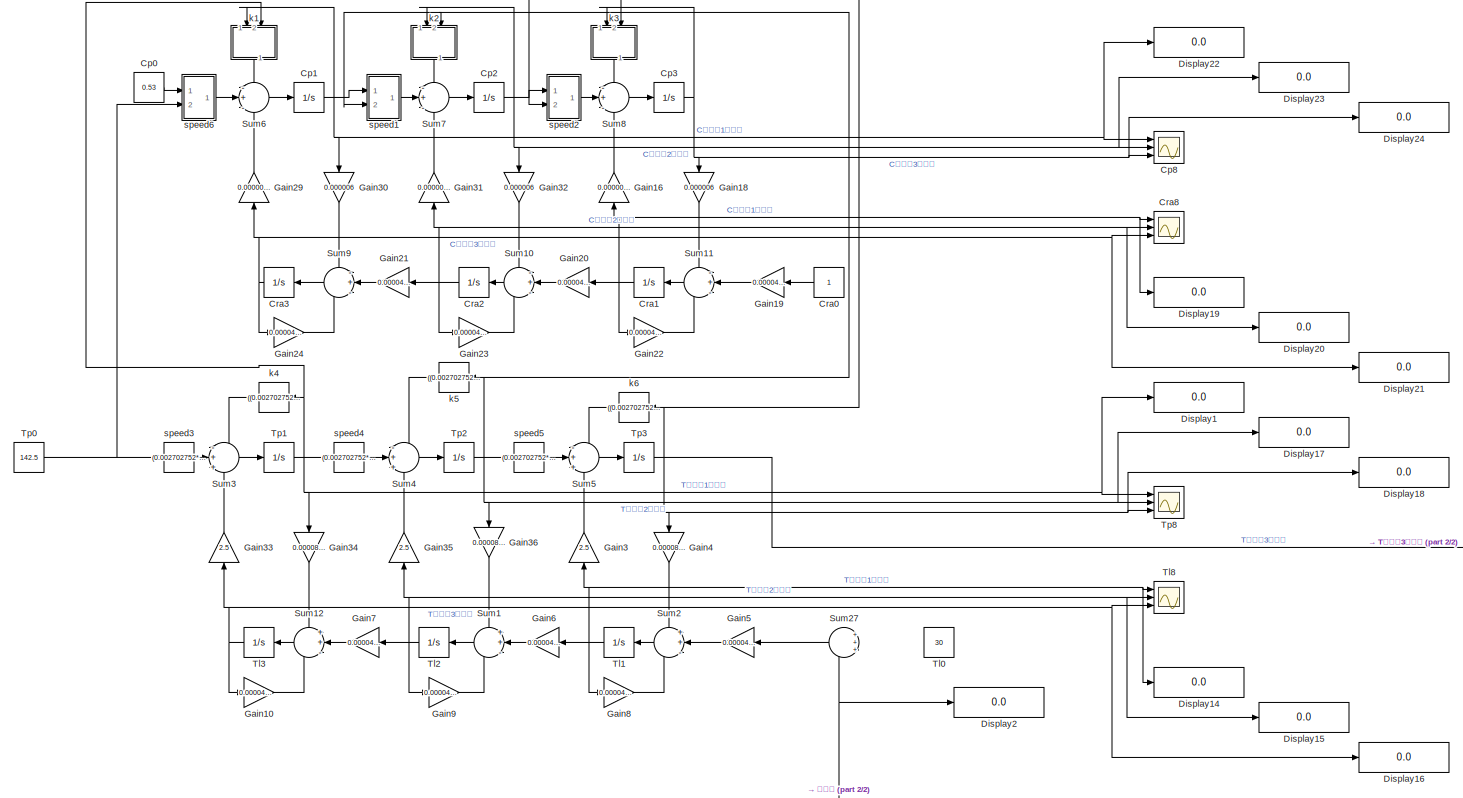
[diagram: root canvas - part 1/2, most of the canvas]
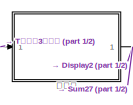
[diagram: root canvas - part 2/2, bottom right region]
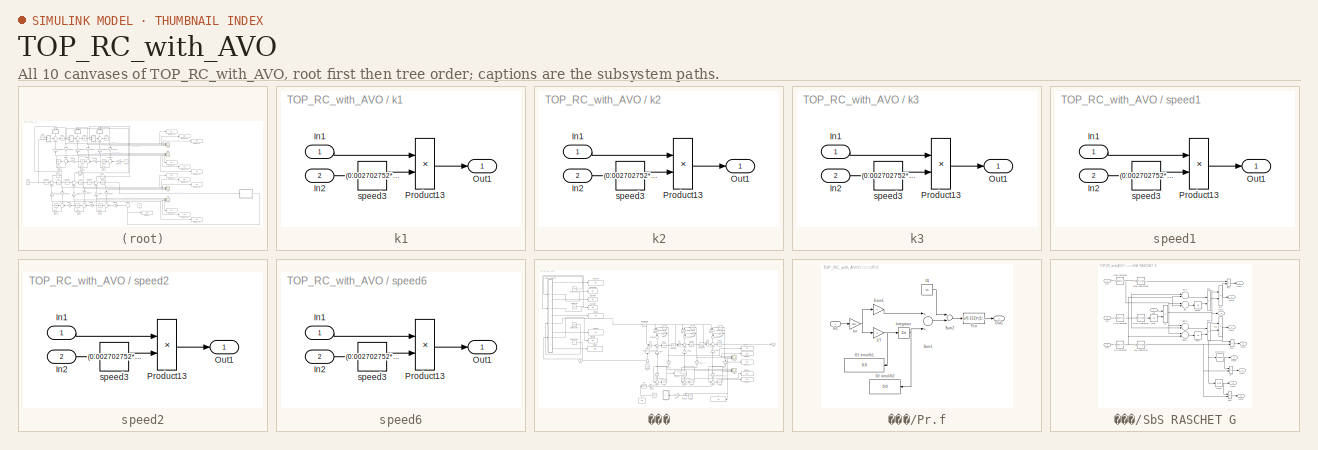
[diagram: thumbnail index - all 10 canvases of the model, root first then tree order]
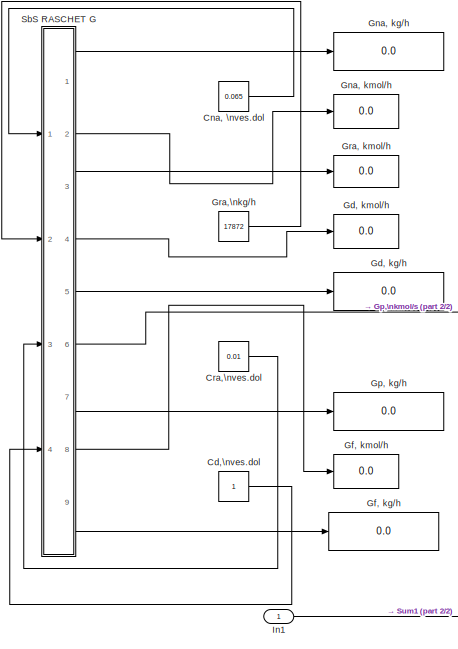
[diagram: ��� - part 1/2, middle left region]
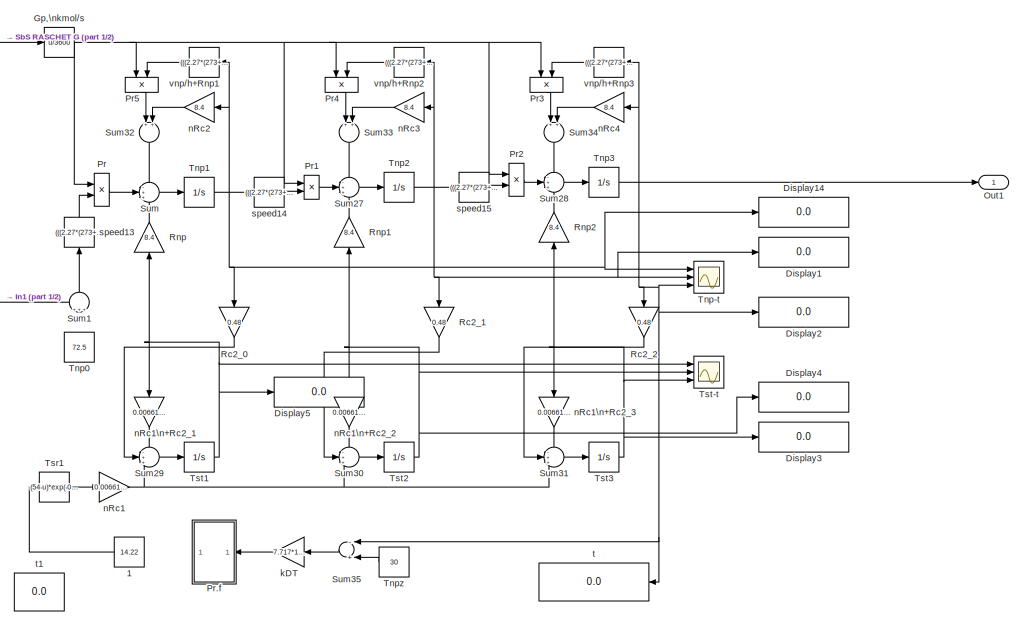
[diagram: ��� - part 2/2, middle right region]
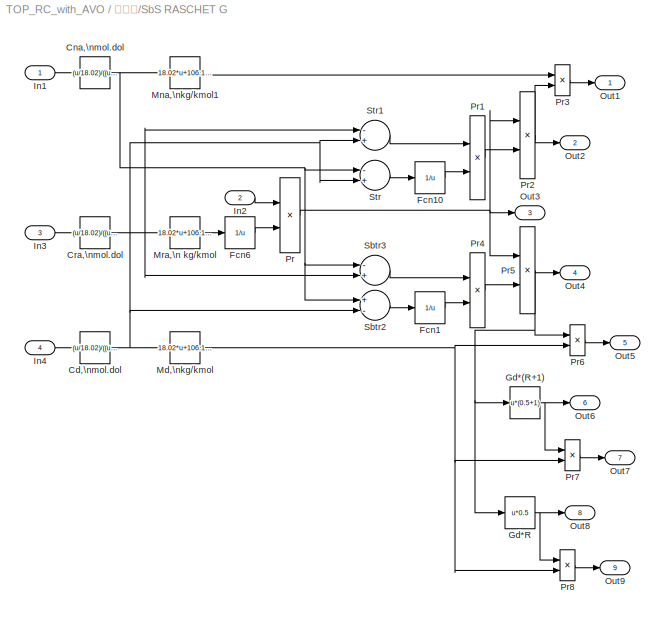
MODEL TOP_RC_with_AVO
KIND model
BLOCK [Constant] Cp0
  SID = 2
  Value = 0.53
BLOCK [Integrator] Cp1
  InitialCondition = 0.682
  Ports = [1, 1]
  SID = 3
BLOCK [Integrator] Cp2
  InitialCondition = 0.834
  Ports = [1, 1]
  SID = 4
BLOCK [Integrator] Cp3
  InitialCondition = 0.986
  Ports = [1, 1]
  SID = 5
BLOCK [Scope] Cp8
  Floating = off
  NumInputPorts = 3
  Ports = [3]
  SID = 10
  ScopeSpecificationString = C++SS(StrPVP('Location','[5, 49, 1371, 737]'),StrPVP('Open','off'),StrPVP('TickLabels','on'),StrPVP('ZoomMode','xonly'),MxPVP('AxesTitles',53,'struct(''axes1'',''%<SignalLabel>'',''axes2'',''%<SignalLabel>'',''axes3'',''%<SignalLabel>'')'),MxPVP('ScopeGraphics',56,'struct(''FigureColor'',''[1 1 1]'',''AxesColor'',''[1 1 1]'',''AxesTickColor'',''[0 0 0]'',''LineColors'',''[0 0 0;1 0 1;0 1 1;1 0 0;0...<+446ch>
BLOCK [Constant] Cra0
  SID = 15
BLOCK [Integrator] Cra1
  InitialCondition = 0.88825
  Ports = [1, 1]
  SID = 16
BLOCK [Integrator] Cra2
  InitialCondition = 0.7765
  Ports = [1, 1]
  SID = 17
BLOCK [Integrator] Cra3
  InitialCondition = 0.66475
  Ports = [1, 1]
  SID = 18
BLOCK [Scope] Cra8
  Floating = off
  NumInputPorts = 3
  Ports = [3]
  SID = 23
  ScopeSpecificationString = C++SS(StrPVP('Location','[5, 49, 1371, 737]'),StrPVP('Open','off'),StrPVP('TickLabels','on'),StrPVP('ZoomMode','xonly'),MxPVP('AxesTitles',53,'struct(''axes1'',''%<SignalLabel>'',''axes2'',''%<SignalLabel>'',''axes3'',''%<SignalLabel>'')'),MxPVP('ScopeGraphics',56,'struct(''FigureColor'',''[1 1 1]'',''AxesColor'',''[1 1 1]'',''AxesTickColor'',''[0 0 0]'',''LineColors'',''[0 0 0;1 0 0;0 1 1;1 0 0;0...<+459ch>
BLOCK [Display] Display1
  Decimation = 1
  Ports = [1]
  SID = 27
BLOCK [Display] Display14
  Decimation = 1
  Ports = [1]
  SID = 32
BLOCK [Display] Display15
  Decimation = 1
  Ports = [1]
  SID = 33
BLOCK [Display] Display16
  Decimation = 1
  Ports = [1]
  SID = 34
BLOCK [Display] Display17
  Decimation = 1
  Ports = [1]
  SID = 35
BLOCK [Display] Display18
  Decimation = 1
  Ports = [1]
  SID = 36
BLOCK [Display] Display19
  Decimation = 1
  Ports = [1]
  SID = 37
BLOCK [Display] Display2
  Decimation = 1
  Ports = [1]
  SID = 389
BLOCK [Display] Display20
  Decimation = 1
  Ports = [1]
  SID = 39
BLOCK [Display] Display21
  Decimation = 1
  Ports = [1]
  SID = 40
BLOCK [Display] Display22
  Decimation = 1
  Ports = [1]
  SID = 41
BLOCK [Display] Display23
  Decimation = 1
  Ports = [1]
  SID = 42
BLOCK [Display] Display24
  Decimation = 1
  Ports = [1]
  SID = 43
BLOCK [Gain] Gain10
  Gain = 0.00004/1.17+0.0000855
  OutDataTypeStr = Inherit: Inherit via internal rule
  ParamDataTypeStr = Inherit: Inherit via internal rule
  SID = 52
  SaturateOnIntegerOverflow = off
BLOCK [Gain] Gain16
  Gain = 0.000000000145
  OutDataTypeStr = Inherit: Inherit via internal rule
  ParamDataTypeStr = Inherit: Inherit via internal rule
  SID = 58
  SaturateOnIntegerOverflow = off
BLOCK [Gain] Gain18
  Gain = 0.000006
  OutDataTypeStr = Inherit: Inherit via internal rule
  ParamDataTypeStr = Inherit: Inherit via internal rule
  SID = 60
  SaturateOnIntegerOverflow = off
BLOCK [Gain] Gain19
  Gain = 0.00004/1.17
  OutDataTypeStr = Inherit: Inherit via internal rule
  ParamDataTypeStr = Inherit: Inherit via internal rule
  SID = 61
  SaturateOnIntegerOverflow = off
BLOCK [Gain] Gain20
  Gain = 0.00004/1.17
  OutDataTypeStr = Inherit: Inherit via internal rule
  ParamDataTypeStr = Inherit: Inherit via internal rule
  SID = 63
  SaturateOnIntegerOverflow = off
BLOCK [Gain] Gain21
  Gain = 0.00004/1.17
  OutDataTypeStr = Inherit: Inherit via internal rule
  ParamDataTypeStr = Inherit: Inherit via internal rule
  SID = 64
  SaturateOnIntegerOverflow = off
BLOCK [Gain] Gain22
  Gain = 0.00004/1.17-(0.000006*0.000000000145)
  OutDataTypeStr = Inherit: Inherit via internal rule
  ParamDataTypeStr = Inherit: Inherit via internal rule
  SID = 65
  SaturateOnIntegerOverflow = off
BLOCK [Gain] Gain23
  Gain = 0.00004/1.17-(0.000006*0.000000000145)
  OutDataTypeStr = Inherit: Inherit via internal rule
  ParamDataTypeStr = Inherit: Inherit via internal rule
  SID = 66
  SaturateOnIntegerOverflow = off
BLOCK [Gain] Gain24
  Gain = 0.00004/1.17-(0.000006*0.000000000145)
  OutDataTypeStr = Inherit: Inherit via internal rule
  ParamDataTypeStr = Inherit: Inherit via internal rule
  SID = 67
  SaturateOnIntegerOverflow = off
BLOCK [Gain] Gain29
  Gain = 0.000000000145
  OutDataTypeStr = Inherit: Inherit via internal rule
  ParamDataTypeStr = Inherit: Inherit via internal rule
  SID = 72
  SaturateOnIntegerOverflow = off
BLOCK [Gain] Gain3
  Gain = 2.5
  OutDataTypeStr = Inherit: Inherit via internal rule
  ParamDataTypeStr = Inherit: Inherit via internal rule
  SID = 73
  SaturateOnIntegerOverflow = off
BLOCK [Gain] Gain30
  Gain = 0.000006
  OutDataTypeStr = Inherit: Inherit via internal rule
  ParamDataTypeStr = Inherit: Inherit via internal rule
  SID = 74
  SaturateOnIntegerOverflow = off
BLOCK [Gain] Gain31
  Gain = 0.000000000145
  OutDataTypeStr = Inherit: Inherit via internal rule
  ParamDataTypeStr = Inherit: Inherit via internal rule
  SID = 75
  SaturateOnIntegerOverflow = off
BLOCK [Gain] Gain32
  Gain = 0.000006
  OutDataTypeStr = Inherit: Inherit via internal rule
  ParamDataTypeStr = Inherit: Inherit via internal rule
  SID = 76
  SaturateOnIntegerOverflow = off
BLOCK [Gain] Gain33
  Gain = 2.5
  OutDataTypeStr = Inherit: Inherit via internal rule
  ParamDataTypeStr = Inherit: Inherit via internal rule
  SID = 77
  SaturateOnIntegerOverflow = off
BLOCK [Gain] Gain34
  Gain = 0.0000855
  OutDataTypeStr = Inherit: Inherit via internal rule
  ParamDataTypeStr = Inherit: Inherit via internal rule
  SID = 78
  SaturateOnIntegerOverflow = off
BLOCK [Gain] Gain35
  Gain = 2.5
  OutDataTypeStr = Inherit: Inherit via internal rule
  ParamDataTypeStr = Inherit: Inherit via internal rule
  SID = 79
  SaturateOnIntegerOverflow = off
BLOCK [Gain] Gain36
  Gain = 0.0000855
  OutDataTypeStr = Inherit: Inherit via internal rule
  ParamDataTypeStr = Inherit: Inherit via internal rule
  SID = 80
  SaturateOnIntegerOverflow = off
BLOCK [Gain] Gain4
  Gain = 0.0000855
  OutDataTypeStr = Inherit: Inherit via internal rule
  ParamDataTypeStr = Inherit: Inherit via internal rule
  SID = 84
  SaturateOnIntegerOverflow = off
BLOCK [Gain] Gain5
  Gain = 0.00004/1.17
  OutDataTypeStr = Inherit: Inherit via internal rule
  ParamDataTypeStr = Inherit: Inherit via internal rule
  SID = 94
  SaturateOnIntegerOverflow = off
BLOCK [Gain] Gain6
  Gain = 0.00004/1.17
  OutDataTypeStr = Inherit: Inherit via internal rule
  ParamDataTypeStr = Inherit: Inherit via internal rule
  SID = 95
  SaturateOnIntegerOverflow = off
BLOCK [Gain] Gain7
  Gain = 0.00004/1.17
  OutDataTypeStr = Inherit: Inherit via internal rule
  ParamDataTypeStr = Inherit: Inherit via internal rule
  SID = 96
  SaturateOnIntegerOverflow = off
BLOCK [Gain] Gain8
  Gain = 0.00004/1.17+0.0000855
  OutDataTypeStr = Inherit: Inherit via internal rule
  ParamDataTypeStr = Inherit: Inherit via internal rule
  SID = 97
  SaturateOnIntegerOverflow = off
BLOCK [Gain] Gain9
  Gain = 0.00004/1.17+0.0000855
  OutDataTypeStr = Inherit: Inherit via internal rule
  ParamDataTypeStr = Inherit: Inherit via internal rule
  SID = 98
  SaturateOnIntegerOverflow = off
BLOCK [Sum] Sum1
  IconShape = round
  InputSameDT = off
  Inputs = ++-
  OutDataTypeStr = Inherit: Inherit via internal rule
  Ports = [3, 1]
  SID = 100
  SaturateOnIntegerOverflow = off
BLOCK [Sum] Sum10
  IconShape = round
  InputSameDT = off
  Inputs = -+-
  OutDataTypeStr = Inherit: Inherit via internal rule
  Ports = [3, 1]
  SID = 101
  SaturateOnIntegerOverflow = off
BLOCK [Sum] Sum11
  IconShape = round
  InputSameDT = off
  Inputs = -+-
  OutDataTypeStr = Inherit: Inherit via internal rule
  Ports = [3, 1]
  SID = 102
  SaturateOnIntegerOverflow = off
BLOCK [Sum] Sum12
  IconShape = round
  InputSameDT = off
  Inputs = ++-
  OutDataTypeStr = Inherit: Inherit via internal rule
  Ports = [3, 1]
  SID = 103
  SaturateOnIntegerOverflow = off
BLOCK [Sum] Sum2
  IconShape = round
  InputSameDT = off
  Inputs = ++-
  OutDataTypeStr = Inherit: Inherit via internal rule
  Ports = [3, 1]
  SID = 111
  SaturateOnIntegerOverflow = off
BLOCK [Sum] Sum27
  IconShape = round
  InputSameDT = off
  Inputs = +++
  OutDataTypeStr = Inherit: Inherit via internal rule
  Ports = [3, 1]
  SID = 386
  SaturateOnIntegerOverflow = off
BLOCK [Sum] Sum3
  IconShape = round
  InputSameDT = off
  Inputs = -++
  OutDataTypeStr = Inherit: Inherit via internal rule
  Ports = [3, 1]
  SID = 119
  SaturateOnIntegerOverflow = off
BLOCK [Sum] Sum4
  IconShape = round
  InputSameDT = off
  Inputs = -++
  OutDataTypeStr = Inherit: Inherit via internal rule
  Ports = [3, 1]
  SID = 120
  SaturateOnIntegerOverflow = off
BLOCK [Sum] Sum5
  IconShape = round
  InputSameDT = off
  Inputs = -++
  OutDataTypeStr = Inherit: Inherit via internal rule
  Ports = [3, 1]
  SID = 121
  SaturateOnIntegerOverflow = off
BLOCK [Sum] Sum6
  IconShape = round
  InputSameDT = off
  Inputs = -+-
  OutDataTypeStr = Inherit: Inherit via internal rule
  Ports = [3, 1]
  SID = 122
  SaturateOnIntegerOverflow = off
BLOCK [Sum] Sum7
  IconShape = round
  InputSameDT = off
  Inputs = -+-
  OutDataTypeStr = Inherit: Inherit via internal rule
  Ports = [3, 1]
  SID = 123
  SaturateOnIntegerOverflow = off
BLOCK [Sum] Sum8
  IconShape = round
  InputSameDT = off
  Inputs = -+-
  OutDataTypeStr = Inherit: Inherit via internal rule
  Ports = [3, 1]
  SID = 124
  SaturateOnIntegerOverflow = off
BLOCK [Sum] Sum9
  IconShape = round
  InputSameDT = off
  Inputs = -+-
  OutDataTypeStr = Inherit: Inherit via internal rule
  Ports = [3, 1]
  SID = 125
  SaturateOnIntegerOverflow = off
BLOCK [Constant] Tl0
  SID = 127
  Value = 30
BLOCK [Integrator] Tl1
  InitialCondition = 57.25
  Ports = [1, 1]
  SID = 128
BLOCK [Integrator] Tl2
  InitialCondition = 84.5
  Ports = [1, 1]
  SID = 129
BLOCK [Integrator] Tl3
  InitialCondition = 111.75
  Ports = [1, 1]
  SID = 130
BLOCK [Scope] Tl8
  Floating = off
  NumInputPorts = 3
  Ports = [3]
  SID = 135
  ScopeSpecificationString = C++SS(StrPVP('Location','[5, 49, 1371, 737]'),StrPVP('Open','off'),StrPVP('TickLabels','on'),StrPVP('ZoomMode','xonly'),MxPVP('AxesTitles',53,'struct(''axes1'',''%<SignalLabel>'',''axes2'',''%<SignalLabel>'',''axes3'',''%<SignalLabel>'')'),MxPVP('ScopeGraphics',56,'struct(''FigureColor'',''[1 1 1]'',''AxesColor'',''[1 1 1]'',''AxesTickColor'',''[0 0 0]'',''LineColors'',''[0 0 0;1 0 1;0 1 1;1 0 0;0...<+472ch>
BLOCK [Constant] Tp0
  SID = 140
  Value = 142.5
BLOCK [Integrator] Tp1
  InitialCondition = 118.2
  Ports = [1, 1]
  SID = 141
BLOCK [Integrator] Tp2
  InitialCondition = 93.9
  Ports = [1, 1]
  SID = 142
BLOCK [Integrator] Tp3
  IgnoreLimit = on
  InitialCondition = 69.6
  Ports = [1, 1]
  SID = 143
BLOCK [Scope] Tp8
  Floating = off
  NumInputPorts = 3
  Ports = [3]
  SID = 148
  ScopeSpecificationString = C++SS(StrPVP('Location','[5, 49, 1371, 737]'),StrPVP('Open','off'),StrPVP('TickLabels','on'),StrPVP('ZoomMode','xonly'),MxPVP('AxesTitles',53,'struct(''axes1'',''%<SignalLabel>'',''axes2'',''%<SignalLabel>'',''axes3'',''%<SignalLabel>'')'),MxPVP('ScopeGraphics',56,'struct(''FigureColor'',''[1 1 1]'',''AxesColor'',''[1 1 1]'',''AxesTickColor'',''[0 0 0]'',''LineColors'',''[0 0 0;1 0 1;0 1 1;1 0 0;0...<+464ch>
BLOCK [SubSystem] k1
  Ports = [2, 1]
  RequestExecContextInheritance = off
  SID = 152
BLOCK [Inport] k1/In1
  IconDisplay = Port number
  SID = 153
BLOCK [Inport] k1/In2
  IconDisplay = Port number
  Port = 2
  SID = 154
BLOCK [Outport] k1/Out1
  IconDisplay = Port number
  SID = 157
BLOCK [Product] k1/Product13
  Ports = [2, 1]
  RndMeth = Floor
  SID = 155
BLOCK [Fcn] k1/speed3
  Expr = (0.002702752*(273.15+u))/1.17-0.147
  SID = 156
BLOCK [SubSystem] k2
  Ports = [2, 1]
  RequestExecContextInheritance = off
  SID = 161
BLOCK [Inport] k2/In1
  IconDisplay = Port number
  SID = 162
BLOCK [Inport] k2/In2
  IconDisplay = Port number
  Port = 2
  SID = 163
BLOCK [Outport] k2/Out1
  IconDisplay = Port number
  SID = 166
BLOCK [Product] k2/Product13
  Ports = [2, 1]
  RndMeth = Floor
  SID = 164
BLOCK [Fcn] k2/speed3
  Expr = (0.002702752*(273.15+u))/1.17-0.147
  SID = 165
BLOCK [SubSystem] k3
  Ports = [2, 1]
  RequestExecContextInheritance = off
  SID = 167
BLOCK [Inport] k3/In1
  IconDisplay = Port number
  SID = 168
BLOCK [Inport] k3/In2
  IconDisplay = Port number
  Port = 2
  SID = 169
BLOCK [Outport] k3/Out1
  IconDisplay = Port number
  SID = 172
BLOCK [Product] k3/Product13
  Ports = [2, 1]
  RndMeth = Floor
  SID = 170
BLOCK [Fcn] k3/speed3
  Expr = (0.002702752*(273.15+u))/1.17-0.147
  SID = 171
BLOCK [Fcn] k4
  Expr = ((0.002702752*(273.15+u))/1.17+2.5)*u
  SID = 173
BLOCK [Fcn] k5
  Expr = ((0.002702752*(273.15+u))/1.17+2.5)*u
  SID = 174
BLOCK [Fcn] k6
  Expr = ((0.002702752*(273.15+u))/1.17+2.5)*u
  SID = 175
BLOCK [SubSystem] speed1
  Ports = [2, 1]
  RequestExecContextInheritance = off
  SID = 194
BLOCK [Inport] speed1/In1
  IconDisplay = Port number
  SID = 195
BLOCK [Inport] speed1/In2
  IconDisplay = Port number
  Port = 2
  SID = 196
BLOCK [Outport] speed1/Out1
  IconDisplay = Port number
  SID = 199
BLOCK [Product] speed1/Product13
  Ports = [2, 1]
  RndMeth = Floor
  SID = 197
BLOCK [Fcn] speed1/speed3
  Expr = (0.002702752*(273.15+u))/1.17
  SID = 198
BLOCK [SubSystem] speed2
  Ports = [2, 1]
  RequestExecContextInheritance = off
  SID = 208
BLOCK [Inport] speed2/In1
  IconDisplay = Port number
  SID = 209
BLOCK [Inport] speed2/In2
  IconDisplay = Port number
  Port = 2
  SID = 210
BLOCK [Outport] speed2/Out1
  IconDisplay = Port number
  SID = 213
BLOCK [Product] speed2/Product13
  Ports = [2, 1]
  RndMeth = Floor
  SID = 211
BLOCK [Fcn] speed2/speed3
  Expr = (0.002702752*(273.15+u))/1.17
  SID = 212
BLOCK [Fcn] speed3
  Expr = (0.002702752*(273.15+u))/1.17*u
  SID = 214
BLOCK [Fcn] speed4
  Expr = (0.002702752*(273.15+u))/1.17*u
  SID = 215
BLOCK [Fcn] speed5
  Expr = (0.002702752*(273.15+u))/1.17*u
  SID = 216
BLOCK [SubSystem] speed6
  Ports = [2, 1]
  RequestExecContextInheritance = off
  SID = 217
BLOCK [Inport] speed6/In1
  IconDisplay = Port number
  SID = 218
BLOCK [Inport] speed6/In2
  IconDisplay = Port number
  Port = 2
  SID = 219
BLOCK [Outport] speed6/Out1
  IconDisplay = Port number
  SID = 222
BLOCK [Product] speed6/Product13
  Ports = [2, 1]
  RndMeth = Floor
  SID = 220
BLOCK [Fcn] speed6/speed3
  Expr = (0.002702752*(273.15+u))/1.17
  SID = 221
BLOCK [SubSystem] ÀÂÎ
  Ports = [1, 1]
  RequestExecContextInheritance = off
  SID = 383
BLOCK [Constant] ÀÂÎ/1
  SID = 388
  Value = 14.22
BLOCK [Constant] ÀÂÎ/Cd,\nves.dol
  SID = 263
BLOCK [Constant] ÀÂÎ/Cna, \nves.dol
  SID = 266
  Value = 0.065
BLOCK [Constant] ÀÂÎ/Cra,\nves.dol
  SID = 267
  Value = 0.01
BLOCK [Display] ÀÂÎ/Display1
  Decimation = 1
  Ports = [1]
  SID = 391
BLOCK [Display] ÀÂÎ/Display14
  Decimation = 1
  Ports = [1]
  SID = 390
BLOCK [Display] ÀÂÎ/Display2
  Decimation = 1
  Ports = [1]
  SID = 392
BLOCK [Display] ÀÂÎ/Display3
  Decimation = 1
  Ports = [1]
  SID = 393
BLOCK [Display] ÀÂÎ/Display4
  Decimation = 1
  Ports = [1]
  SID = 394
BLOCK [Display] ÀÂÎ/Display5
  Decimation = 1
  Ports = [1]
  SID = 395
BLOCK [Display] ÀÂÎ/Gd, kg//h
  Decimation = 1
  Format = long
  Ports = [1]
  SID = 268
BLOCK [Display] ÀÂÎ/Gd, kmol//h
  Decimation = 1
  Ports = [1]
  SID = 269
BLOCK [Display] ÀÂÎ/Gf, kg//h
  Decimation = 1
  Format = long
  Ports = [1]
  SID = 270
BLOCK [Display] ÀÂÎ/Gf, kmol//h
  Decimation = 1
  Ports = [1]
  SID = 271
BLOCK [Display] ÀÂÎ/Gna, kg//h
  Decimation = 1
  Format = long
  Ports = [1]
  SID = 272
BLOCK [Display] ÀÂÎ/Gna, kmol//h
  Decimation = 1
  Ports = [1]
  SID = 273
BLOCK [Display] ÀÂÎ/Gp, kg//h
  Decimation = 1
  Format = long
  Ports = [1]
  SID = 275
BLOCK [Fcn] ÀÂÎ/Gp,\nkmol//s
  Expr = u/3600
  SID = 274
BLOCK [Display] ÀÂÎ/Gra, kmol//h
  Decimation = 1
  Ports = [1]
  SID = 277
BLOCK [Constant] ÀÂÎ/Gra,\nkg//h
  SID = 276
  Value = 17872
BLOCK [Inport] ÀÂÎ/In1
  IconDisplay = Port number
  SID = 384
BLOCK [Outport] ÀÂÎ/Out1
  IconDisplay = Port number
  SID = 385
BLOCK [Product] ÀÂÎ/Pr
  InputSameDT = off
  OutDataTypeStr = Inherit: Inherit via internal rule
  Ports = [2, 1]
  SID = 278
  SaturateOnIntegerOverflow = off
BLOCK [SubSystem] ÀÂÎ/Pr.f
  Ports = [1, 1]
  RequestExecContextInheritance = off
  SID = 279
BLOCK [Gain] ÀÂÎ/Pr.f/1//T
  OutDataTypeStr = Inherit: Inherit via internal rule
  ParamDataTypeStr = Inherit: Inherit via internal rule
  SID = 281
  SaturateOnIntegerOverflow = off
BLOCK [Fcn] ÀÂÎ/Pr.f/Fcn
  Expr = (u/0.152)^(1/2)
  SID = 282
BLOCK [Gain] ÀÂÎ/Pr.f/Gain1
  OutDataTypeStr = Inherit: Inherit via internal rule
  ParamDataTypeStr = Inherit: Inherit via internal rule
  SID = 283
  SaturateOnIntegerOverflow = off
BLOCK [Display] ÀÂÎ/Pr.f/Gf, kmol//h1
  Decimation = 1
  Ports = [1]
  SID = 284
BLOCK [Display] ÀÂÎ/Pr.f/Gf, kmol//h2
  Decimation = 1
  Ports = [1]
  SID = 285
BLOCK [Inport] ÀÂÎ/Pr.f/In1
  IconDisplay = Port number
  SID = 280
BLOCK [Integrator] ÀÂÎ/Pr.f/Integrator
  InitialCondition = 403.6
  Ports = [1, 1]
  SID = 286
BLOCK [Outport] ÀÂÎ/Pr.f/Out1
  IconDisplay = Port number
  SID = 291
BLOCK [Sum] ÀÂÎ/Pr.f/Sum1
  InputSameDT = off
  OutDataTypeStr = Inherit: Inherit via internal rule
  Ports = [2, 1]
  SID = 287
  SaturateOnIntegerOverflow = off
BLOCK [Sum] ÀÂÎ/Pr.f/Sum2
  InputSameDT = off
  Inputs = -+
  OutDataTypeStr = Inherit: Inherit via internal rule
  Ports = [2, 1]
  SID = 288
  SaturateOnIntegerOverflow = off
BLOCK [Constant] ÀÂÎ/Pr.f/U1
  SID = 289
  Value = 380
BLOCK [Gain] ÀÂÎ/Pr.f/kn
  Gain = 4300
  OutDataTypeStr = Inherit: Inherit via internal rule
  ParamDataTypeStr = Inherit: Inherit via internal rule
  SID = 290
  SaturateOnIntegerOverflow = off
BLOCK [Product] ÀÂÎ/Pr1
  InputSameDT = off
  OutDataTypeStr = Inherit: Inherit via internal rule
  Ports = [2, 1]
  SID = 292
  SaturateOnIntegerOverflow = off
BLOCK [Product] ÀÂÎ/Pr2
  InputSameDT = off
  OutDataTypeStr = Inherit: Inherit via internal rule
  Ports = [2, 1]
  SID = 293
  SaturateOnIntegerOverflow = off
BLOCK [Product] ÀÂÎ/Pr3
  InputSameDT = off
  OutDataTypeStr = Inherit: Inherit via internal rule
  Ports = [2, 1]
  SID = 294
  SaturateOnIntegerOverflow = off
BLOCK [Product] ÀÂÎ/Pr4
  InputSameDT = off
  OutDataTypeStr = Inherit: Inherit via internal rule
  Ports = [2, 1]
  SID = 295
  SaturateOnIntegerOverflow = off
BLOCK [Product] ÀÂÎ/Pr5
  InputSameDT = off
  OutDataTypeStr = Inherit: Inherit via internal rule
  Ports = [2, 1]
  SID = 296
  SaturateOnIntegerOverflow = off
BLOCK [Gain] ÀÂÎ/Rc2_0
  Gain = 0.48
  OutDataTypeStr = Inherit: Inherit via internal rule
  ParamDataTypeStr = Inherit: Inherit via internal rule
  SID = 297
  SaturateOnIntegerOverflow = off
BLOCK [Gain] ÀÂÎ/Rc2_1
  Gain = 0.48
  OutDataTypeStr = Inherit: Inherit via internal rule
  ParamDataTypeStr = Inherit: Inherit via internal rule
  SID = 298
  SaturateOnIntegerOverflow = off
BLOCK [Gain] ÀÂÎ/Rc2_2
  Gain = 0.48
  OutDataTypeStr = Inherit: Inherit via internal rule
  ParamDataTypeStr = Inherit: Inherit via internal rule
  SID = 299
  SaturateOnIntegerOverflow = off
BLOCK [Gain] ÀÂÎ/Rnp
  Gain = 8.4
  OutDataTypeStr = Inherit: Inherit via internal rule
  ParamDataTypeStr = Inherit: Inherit via internal rule
  SID = 300
  SaturateOnIntegerOverflow = off
BLOCK [Gain] ÀÂÎ/Rnp1
  Gain = 8.4
  OutDataTypeStr = Inherit: Inherit via internal rule
  ParamDataTypeStr = Inherit: Inherit via internal rule
  SID = 301
  SaturateOnIntegerOverflow = off
BLOCK [Gain] ÀÂÎ/Rnp2
  Gain = 8.4
  OutDataTypeStr = Inherit: Inherit via internal rule
  ParamDataTypeStr = Inherit: Inherit via internal rule
  SID = 302
  SaturateOnIntegerOverflow = off
BLOCK [SubSystem] ÀÂÎ/SbS RASCHET G
  Ports = [4, 9]
  RequestExecContextInheritance = off
  SID = 303
BLOCK [Fcn] ÀÂÎ/SbS RASCHET G/Cd,\nmol.dol
  Expr = (u/18.02)/((u/18.02)+((1-u)/106.12))
  SID = 308
BLOCK [Fcn] ÀÂÎ/SbS RASCHET G/Cna,\nmol.dol
  Expr = (u/18.02)/((u/18.02)+((1-u)/106.12))
  SID = 309
BLOCK [Fcn] ÀÂÎ/SbS RASCHET G/Cra,\nmol.dol
  Expr = (u/18.02)/((u/18.02)+((1-u)/106.12))
  SID = 310
BLOCK [Fcn] ÀÂÎ/SbS RASCHET G/Fcn1
  Expr = 1/u
  SID = 311
BLOCK [Fcn] ÀÂÎ/SbS RASCHET G/Fcn10
  Expr = 1/u
  SID = 312
BLOCK [Fcn] ÀÂÎ/SbS RASCHET G/Fcn6
  Expr = 1/u
  SID = 313
BLOCK [Fcn] ÀÂÎ/SbS RASCHET G/Gd*(R+1)
  Expr = u*(0.5+1)
  SID = 314
BLOCK [Fcn] ÀÂÎ/SbS RASCHET G/Gd*R
  Expr = u*0.5
  SID = 315
BLOCK [Inport] ÀÂÎ/SbS RASCHET G/In1
  IconDisplay = Port number
  SID = 304
BLOCK [Inport] ÀÂÎ/SbS RASCHET G/In2
  IconDisplay = Port number
  Port = 2
  SID = 305
BLOCK [Inport] ÀÂÎ/SbS RASCHET G/In3
  IconDisplay = Port number
  Port = 3
  SID = 306
BLOCK [Inport] ÀÂÎ/SbS RASCHET G/In4
  IconDisplay = Port number
  Port = 4
  SID = 307
BLOCK [Fcn] ÀÂÎ/SbS RASCHET G/Md,\nkg//kmol
  Expr = 18.02*u+106.12*(1-u)
  SID = 316
BLOCK [Fcn] ÀÂÎ/SbS RASCHET G/Mna,\nkg//kmol1
  Expr = 18.02*u+106.12*(1-u)
  SID = 317
BLOCK [Fcn] ÀÂÎ/SbS RASCHET G/Mra,\n kg//kmol
  Expr = 18.02*u+106.12*(1-u)
  SID = 318
BLOCK [Outport] ÀÂÎ/SbS RASCHET G/Out1
  IconDisplay = Port number
  SID = 332
BLOCK [Outport] ÀÂÎ/SbS RASCHET G/Out2
  IconDisplay = Port number
  Port = 2
  SID = 333
BLOCK [Outport] ÀÂÎ/SbS RASCHET G/Out3
  IconDisplay = Port number
  Port = 3
  SID = 334
BLOCK [Outport] ÀÂÎ/SbS RASCHET G/Out4
  IconDisplay = Port number
  Port = 4
  SID = 335
BLOCK [Outport] ÀÂÎ/SbS RASCHET G/Out5
  IconDisplay = Port number
  Port = 5
  SID = 336
BLOCK [Outport] ÀÂÎ/SbS RASCHET G/Out6
  IconDisplay = Port number
  Port = 6
  SID = 337
BLOCK [Outport] ÀÂÎ/SbS RASCHET G/Out7
  IconDisplay = Port number
  Port = 7
  SID = 338
BLOCK [Outport] ÀÂÎ/SbS RASCHET G/Out8
  IconDisplay = Port number
  Port = 8
  SID = 339
BLOCK [Outport] ÀÂÎ/SbS RASCHET G/Out9
  IconDisplay = Port number
  Port = 9
  SID = 340
BLOCK [Product] ÀÂÎ/SbS RASCHET G/Pr
  InputSameDT = off
  OutDataTypeStr = Inherit: Inherit via internal rule
  Ports = [2, 1]
  SID = 319
  SaturateOnIntegerOverflow = off
BLOCK [Product] ÀÂÎ/SbS RASCHET G/Pr1
  InputSameDT = off
  OutDataTypeStr = Inherit: Inherit via internal rule
  Ports = [2, 1]
  SID = 320
  SaturateOnIntegerOverflow = off
BLOCK [Product] ÀÂÎ/SbS RASCHET G/Pr2
  InputSameDT = off
  OutDataTypeStr = Inherit: Inherit via internal rule
  Ports = [2, 1]
  SID = 321
  SaturateOnIntegerOverflow = off
BLOCK [Product] ÀÂÎ/SbS RASCHET G/Pr3
  InputSameDT = off
  OutDataTypeStr = Inherit: Inherit via internal rule
  Ports = [2, 1]
  SID = 322
  SaturateOnIntegerOverflow = off
BLOCK [Product] ÀÂÎ/SbS RASCHET G/Pr4
  InputSameDT = off
  OutDataTypeStr = Inherit: Inherit via internal rule
  Ports = [2, 1]
  SID = 323
  SaturateOnIntegerOverflow = off
BLOCK [Product] ÀÂÎ/SbS RASCHET G/Pr5
  InputSameDT = off
  OutDataTypeStr = Inherit: Inherit via internal rule
  Ports = [2, 1]
  SID = 324
  SaturateOnIntegerOverflow = off
BLOCK [Product] ÀÂÎ/SbS RASCHET G/Pr6
  InputSameDT = off
  OutDataTypeStr = Inherit: Inherit via internal rule
  Ports = [2, 1]
  SID = 325
  SaturateOnIntegerOverflow = off
BLOCK [Product] ÀÂÎ/SbS RASCHET G/Pr7
  InputSameDT = off
  OutDataTypeStr = Inherit: Inherit via internal rule
  Ports = [2, 1]
  SID = 326
  SaturateOnIntegerOverflow = off
BLOCK [Product] ÀÂÎ/SbS RASCHET G/Pr8
  InputSameDT = off
  OutDataTypeStr = Inherit: Inherit via internal rule
  Ports = [2, 1]
  SID = 327
  SaturateOnIntegerOverflow = off
BLOCK [Sum] ÀÂÎ/SbS RASCHET G/Sbtr2
  InputSameDT = off
  Inputs = +-
  OutDataTypeStr = Inherit: Inherit via internal rule
  Ports = [2, 1]
  SID = 328
  SaturateOnIntegerOverflow = off
BLOCK [Sum] ÀÂÎ/SbS RASCHET G/Sbtr3
  InputSameDT = off
  Inputs = -+
  OutDataTypeStr = Inherit: Inherit via internal rule
  Ports = [2, 1]
  SID = 329
  SaturateOnIntegerOverflow = off
BLOCK [Sum] ÀÂÎ/SbS RASCHET G/Str
  InputSameDT = off
  Inputs = -+
  OutDataTypeStr = Inherit: Inherit via internal rule
  Ports = [2, 1]
  SID = 330
  SaturateOnIntegerOverflow = off
BLOCK [Sum] ÀÂÎ/SbS RASCHET G/Str1
  InputSameDT = off
  Inputs = -+
  OutDataTypeStr = Inherit: Inherit via internal rule
  Ports = [2, 1]
  SID = 331
  SaturateOnIntegerOverflow = off
BLOCK [Sum] ÀÂÎ/Sum
  IconShape = round
  InputSameDT = off
  Inputs = -++
  OutDataTypeStr = Inherit: Inherit via internal rule
  Ports = [3, 1]
  SID = 341
  SaturateOnIntegerOverflow = off
BLOCK [Sum] ÀÂÎ/Sum1
  IconShape = round
  InputSameDT = off
  Inputs = +++
  OutDataTypeStr = Inherit: Inherit via internal rule
  Ports = [3, 1]
  SID = 387
  SaturateOnIntegerOverflow = off
BLOCK [Sum] ÀÂÎ/Sum27
  IconShape = round
  InputSameDT = off
  Inputs = -++
  OutDataTypeStr = Inherit: Inherit via internal rule
  Ports = [3, 1]
  SID = 342
  SaturateOnIntegerOverflow = off
BLOCK [Sum] ÀÂÎ/Sum28
  IconShape = round
  InputSameDT = off
  Inputs = -++
  OutDataTypeStr = Inherit: Inherit via internal rule
  Ports = [3, 1]
  SID = 343
  SaturateOnIntegerOverflow = off
BLOCK [Sum] ÀÂÎ/Sum29
  IconShape = round
  InputSameDT = off
  Inputs = -++
  OutDataTypeStr = Inherit: Inherit via internal rule
  Ports = [3, 1]
  SID = 344
  SaturateOnIntegerOverflow = off
BLOCK [Sum] ÀÂÎ/Sum30
  IconShape = round
  InputSameDT = off
  Inputs = -++
  OutDataTypeStr = Inherit: Inherit via internal rule
  Ports = [3, 1]
  SID = 345
  SaturateOnIntegerOverflow = off
BLOCK [Sum] ÀÂÎ/Sum31
  IconShape = round
  InputSameDT = off
  Inputs = -++
  OutDataTypeStr = Inherit: Inherit via internal rule
  Ports = [3, 1]
  SID = 346
  SaturateOnIntegerOverflow = off
BLOCK [Sum] ÀÂÎ/Sum32
  InputSameDT = off
  OutDataTypeStr = Inherit: Inherit via internal rule
  Ports = [2, 1]
  SID = 347
  SaturateOnIntegerOverflow = off
BLOCK [Sum] ÀÂÎ/Sum33
  InputSameDT = off
  OutDataTypeStr = Inherit: Inherit via internal rule
  Ports = [2, 1]
  SID = 348
  SaturateOnIntegerOverflow = off
BLOCK [Sum] ÀÂÎ/Sum34
  InputSameDT = off
  OutDataTypeStr = Inherit: Inherit via internal rule
  Ports = [2, 1]
  SID = 349
  SaturateOnIntegerOverflow = off
BLOCK [Sum] ÀÂÎ/Sum35
  InputSameDT = off
  Inputs = -+
  OutDataTypeStr = Inherit: Inherit via internal rule
  Ports = [2, 1]
  SID = 350
  SaturateOnIntegerOverflow = off
BLOCK [Scope] ÀÂÎ/Tnp-t
  Floating = off
  NumInputPorts = 3
  Ports = [3]
  SID = 351
  ScopeSpecificationString = C++SS(StrPVP('Location','[186, 58, 510, 561]'),StrPVP('Open','off'),MxPVP('AxesTitles',53,'struct(''axes1'',''%<SignalLabel>'',''axes2'',''%<SignalLabel>'',''axes3'',''%<SignalLabel>'')'),MxPVP('ScopeGraphics',56,'struct(''FigureColor'',''[0.5 0.5 0.5]'',''AxesColor'',''[0 0 0]'',''AxesTickColor'',''[1 1 1]'',''LineColors'',''[1 1 0;1 0 1;0 1 1;1 0 0;0 1 0;0 0 1]'',''LineStyles'',''-|-|-|-|-|-'','...<+378ch>
BLOCK [Constant] ÀÂÎ/Tnp0
  SID = 353
  Value = 72.5
BLOCK [Integrator] ÀÂÎ/Tnp1
  InitialCondition = 64.9985
  Ports = [1, 1]
  SID = 354
BLOCK [Integrator] ÀÂÎ/Tnp2
  InitialCondition = 57.497
  Ports = [1, 1]
  SID = 355
BLOCK [Integrator] ÀÂÎ/Tnp3
  InitialCondition = 49.9955
  Ports = [1, 1]
  SID = 356
BLOCK [Constant] ÀÂÎ/Tnpz
  SID = 357
  Value = 30
BLOCK [Fcn] ÀÂÎ/Tsr1
  Expr = (54-u)*exp(-0.06*101.25)+u
  SID = 358
BLOCK [Scope] ÀÂÎ/Tst-t
  Floating = off
  NumInputPorts = 3
  Ports = [3]
  SID = 359
  ScopeSpecificationString = C++SS(StrPVP('Location','[525, 58, 849, 561]'),StrPVP('Open','off'),MxPVP('AxesTitles',53,'struct(''axes1'',''%<SignalLabel>'',''axes2'',''%<SignalLabel>'',''axes3'',''%<SignalLabel>'')'),MxPVP('ScopeGraphics',56,'struct(''FigureColor'',''[0.5 0.5 0.5]'',''AxesColor'',''[0 0 0]'',''AxesTickColor'',''[1 1 1]'',''LineColors'',''[1 1 0;1 0 1;0 1 1;1 0 0;0 1 0;0 0 1]'',''LineStyles'',''-|-|-|-|-|-'','...<+410ch>
BLOCK [Integrator] ÀÂÎ/Tst1
  InitialCondition = 30.75
  Ports = [1, 1]
  SID = 361
BLOCK [Integrator] ÀÂÎ/Tst2
  InitialCondition = 27.02
  Ports = [1, 1]
  SID = 362
BLOCK [Integrator] ÀÂÎ/Tst3
  InitialCondition = 23.29
  Ports = [1, 1]
  SID = 363
BLOCK [Gain] ÀÂÎ/kDT
  Gain = 7.717*10^(-5)
  OutDataTypeStr = Inherit: Inherit via internal rule
  ParamDataTypeStr = Inherit: Inherit via internal rule
  SID = 364
  SaturateOnIntegerOverflow = off
BLOCK [Gain] ÀÂÎ/nRc1
  Gain = 0.00661*134
  OutDataTypeStr = Inherit: Inherit via internal rule
  ParamDataTypeStr = Inherit: Inherit via internal rule
  SID = 365
  SaturateOnIntegerOverflow = off
BLOCK [Gain] ÀÂÎ/nRc1\n+Rc2_1
  Gain = 0.00661*134+0.48
  OutDataTypeStr = Inherit: Inherit via internal rule
  ParamDataTypeStr = Inherit: Inherit via internal rule
  SID = 366
  SaturateOnIntegerOverflow = off
BLOCK [Gain] ÀÂÎ/nRc1\n+Rc2_2
  Gain = 0.00661*134+0.48
  OutDataTypeStr = Inherit: Inherit via internal rule
  ParamDataTypeStr = Inherit: Inherit via internal rule
  SID = 367
  SaturateOnIntegerOverflow = off
BLOCK [Gain] ÀÂÎ/nRc1\n+Rc2_3
  Gain = 0.00661*134+0.48
  OutDataTypeStr = Inherit: Inherit via internal rule
  ParamDataTypeStr = Inherit: Inherit via internal rule
  SID = 368
  SaturateOnIntegerOverflow = off
BLOCK [Gain] ÀÂÎ/nRc2
  Gain = 8.4
  OutDataTypeStr = Inherit: Inherit via internal rule
  ParamDataTypeStr = Inherit: Inherit via internal rule
  SID = 369
  SaturateOnIntegerOverflow = off
BLOCK [Gain] ÀÂÎ/nRc3
  Gain = 8.4
  OutDataTypeStr = Inherit: Inherit via internal rule
  ParamDataTypeStr = Inherit: Inherit via internal rule
  SID = 370
  SaturateOnIntegerOverflow = off
BLOCK [Gain] ÀÂÎ/nRc4
  Gain = 8.4
  OutDataTypeStr = Inherit: Inherit via internal rule
  ParamDataTypeStr = Inherit: Inherit via internal rule
  SID = 371
  SaturateOnIntegerOverflow = off
BLOCK [Fcn] ÀÂÎ/speed13
  Expr = (((2.27*(273+u))/1.4184)/1.333)*u
  SID = 372
BLOCK [Fcn] ÀÂÎ/speed14
  Expr = (((2.27*(273+u))/1.4184)/1.333)*u
  SID = 373
BLOCK [Fcn] ÀÂÎ/speed15
  Expr = (((2.27*(273+u))/1.4184)/1.333)*u
  SID = 374
BLOCK [Display] ÀÂÎ/t
  Decimation = 1
  Ports = [1]
  SID = 375
BLOCK [Display] ÀÂÎ/t1
  Decimation = 1
  Ports = [1]
  SID = 376
BLOCK [Fcn] ÀÂÎ/vnp//h+Rnp1
  Expr = (((2.27*(273+u))/1.4184)/1.333)*u
  SID = 377
BLOCK [Fcn] ÀÂÎ/vnp//h+Rnp2
  Expr = (((2.27*(273+u))/1.4184)/1.333)*u
  SID = 378
BLOCK [Fcn] ÀÂÎ/vnp//h+Rnp3
  Expr = (((2.27*(273+u))/1.4184)/1.333)*u
  SID = 379
LINE Cp0:1 -> speed6:1
NET Cp1:1 -> Cp8:1, Display22:1, Gain30:1, k1:1, speed1:1
NET Cp2:1 -> Cp8:2, Display23:1, Gain32:1, k2:1, speed2:1
NET Cp3:1 -> Cp8:3, Display24:1, Gain18:1, k3:1
LINE Cra0:1 -> Gain19:1
NET Cra1:1 -> Cra8:1, Display19:1, Gain16:1, Gain20:1, Gain22:1
NET Cra2:1 -> Cra8:2, Display20:1, Gain21:1, Gain23:1, Gain31:1
NET Cra3:1 -> Cra8:3, Display21:1, Gain24:1, Gain29:1
LINE Gain10:1 -> Sum12:3
LINE Gain16:1 -> Sum8:3
LINE Gain18:1 -> Sum11:1
LINE Gain19:1 -> Sum11:2
LINE Gain20:1 -> Sum10:2
LINE Gain21:1 -> Sum9:2
LINE Gain22:1 -> Sum11:3
LINE Gain23:1 -> Sum10:3
LINE Gain24:1 -> Sum9:3
LINE Gain29:1 -> Sum6:3
LINE Gain30:1 -> Sum9:1
LINE Gain31:1 -> Sum7:3
LINE Gain32:1 -> Sum10:1
LINE Gain33:1 -> Sum3:3
LINE Gain34:1 -> Sum12:1
LINE Gain35:1 -> Sum4:3
LINE Gain36:1 -> Sum1:1
LINE Gain3:1 -> Sum5:3
LINE Gain4:1 -> Sum2:1
LINE Gain5:1 -> Sum2:2
LINE Gain6:1 -> Sum1:2
LINE Gain7:1 -> Sum12:2
LINE Gain8:1 -> Sum2:3
LINE Gain9:1 -> Sum1:3
LINE Sum10:1 -> Cra2:1
LINE Sum11:1 -> Cra1:1
LINE Sum12:1 -> Tl3:1
LINE Sum1:1 -> Tl2:1
LINE Sum27:1 -> Gain5:1
LINE Sum2:1 -> Tl1:1
LINE Sum3:1 -> Tp1:1
LINE Sum4:1 -> Tp2:1
LINE Sum5:1 -> Tp3:1
LINE Sum6:1 -> Cp1:1
LINE Sum7:1 -> Cp2:1
LINE Sum8:1 -> Cp3:1
LINE Sum9:1 -> Cra3:1
NET Tl1:1 -> Display14:1, Gain3:1, Gain6:1, Gain8:1, Tl8:1
NET Tl2:1 -> Display15:1, Gain35:1, Gain7:1, Gain9:1, Tl8:2
NET Tl3:1 -> Display16:1, Gain10:1, Gain33:1, Tl8:3
NET Tp0:1 -> speed3:1, speed6:2
NET Tp1:1 -> Display1:1, Gain34:1, Tp8:1, k1:2, k4:1, speed4:1
NET Tp2:1 -> Display17:1, Gain36:1, Tp8:2, k2:2, k5:1, speed1:2, speed5:1
NET Tp3:1 -> Display18:1, Gain4:1, Tp8:3, k3:2, k6:1, speed2:2, ÀÂÎ:1
LINE k1/In1:1 -> k1/Product13:1
LINE k1/In2:1 -> k1/speed3:1
LINE k1/Product13:1 -> k1/Out1:1
LINE k1/speed3:1 -> k1/Product13:2
LINE k1:1 -> Sum6:1
LINE k2/In1:1 -> k2/Product13:1
LINE k2/In2:1 -> k2/speed3:1
LINE k2/Product13:1 -> k2/Out1:1
LINE k2/speed3:1 -> k2/Product13:2
LINE k2:1 -> Sum7:1
LINE k3/In1:1 -> k3/Product13:1
LINE k3/In2:1 -> k3/speed3:1
LINE k3/Product13:1 -> k3/Out1:1
LINE k3/speed3:1 -> k3/Product13:2
LINE k3:1 -> Sum8:1
LINE k4:1 -> Sum3:1
LINE k5:1 -> Sum4:1
LINE k6:1 -> Sum5:1
LINE speed1/In1:1 -> speed1/Product13:1
LINE speed1/In2:1 -> speed1/speed3:1
LINE speed1/Product13:1 -> speed1/Out1:1
LINE speed1/speed3:1 -> speed1/Product13:2
LINE speed1:1 -> Sum7:2
LINE speed2/In1:1 -> speed2/Product13:1
LINE speed2/In2:1 -> speed2/speed3:1
LINE speed2/Product13:1 -> speed2/Out1:1
LINE speed2/speed3:1 -> speed2/Product13:2
LINE speed2:1 -> Sum8:2
LINE speed3:1 -> Sum3:2
LINE speed4:1 -> Sum4:2
LINE speed5:1 -> Sum5:2
LINE speed6/In1:1 -> speed6/Product13:1
LINE speed6/In2:1 -> speed6/speed3:1
LINE speed6/Product13:1 -> speed6/Out1:1
LINE speed6/speed3:1 -> speed6/Product13:2
LINE speed6:1 -> Sum6:2
LINE ÀÂÎ/1:1 -> ÀÂÎ/Tsr1:1
LINE ÀÂÎ/Cd,\nves.dol:1 -> ÀÂÎ/SbS RASCHET G:4
LINE ÀÂÎ/Cna, \nves.dol:1 -> ÀÂÎ/SbS RASCHET G:1
LINE ÀÂÎ/Cra,\nves.dol:1 -> ÀÂÎ/SbS RASCHET G:3
NET ÀÂÎ/Gp,\nkmol//s:1 -> ÀÂÎ/Pr1:1, ÀÂÎ/Pr2:1, ÀÂÎ/Pr3:1, ÀÂÎ/Pr4:1, ÀÂÎ/Pr5:1, ÀÂÎ/Pr:1
LINE ÀÂÎ/Gra,\nkg//h:1 -> ÀÂÎ/SbS RASCHET G:2
LINE ÀÂÎ/In1:1 -> ÀÂÎ/Sum1:1
NET ÀÂÎ/Pr.f/1//T:1 -> ÀÂÎ/Pr.f/Gf, kmol//h1:1, ÀÂÎ/Pr.f/Integrator:1
LINE ÀÂÎ/Pr.f/Fcn:1 -> ÀÂÎ/Pr.f/Out1:1
LINE ÀÂÎ/Pr.f/Gain1:1 -> ÀÂÎ/Pr.f/Sum1:1
LINE ÀÂÎ/Pr.f/In1:1 -> ÀÂÎ/Pr.f/kn:1
NET ÀÂÎ/Pr.f/Integrator:1 -> ÀÂÎ/Pr.f/Gf, kmol//h2:1, ÀÂÎ/Pr.f/Sum1:2
LINE ÀÂÎ/Pr.f/Sum1:1 -> ÀÂÎ/Pr.f/Sum2:2
LINE ÀÂÎ/Pr.f/Sum2:1 -> ÀÂÎ/Pr.f/Fcn:1
LINE ÀÂÎ/Pr.f/U1:1 -> ÀÂÎ/Pr.f/Sum2:1
NET ÀÂÎ/Pr.f/kn:1 -> ÀÂÎ/Pr.f/1//T:1, ÀÂÎ/Pr.f/Gain1:1
LINE ÀÂÎ/Pr1:1 -> ÀÂÎ/Sum27:2
LINE ÀÂÎ/Pr2:1 -> ÀÂÎ/Sum28:2
LINE ÀÂÎ/Pr3:1 -> ÀÂÎ/Sum34:1
LINE ÀÂÎ/Pr4:1 -> ÀÂÎ/Sum33:1
LINE ÀÂÎ/Pr5:1 -> ÀÂÎ/Sum32:1
LINE ÀÂÎ/Pr:1 -> ÀÂÎ/Sum:2
LINE ÀÂÎ/Rc2_0:1 -> ÀÂÎ/Sum29:2
LINE ÀÂÎ/Rc2_1:1 -> ÀÂÎ/Sum30:2
LINE ÀÂÎ/Rc2_2:1 -> ÀÂÎ/Sum31:2
LINE ÀÂÎ/Rnp1:1 -> ÀÂÎ/Sum27:3
LINE ÀÂÎ/Rnp2:1 -> ÀÂÎ/Sum28:3
LINE ÀÂÎ/Rnp:1 -> ÀÂÎ/Sum:3
NET ÀÂÎ/SbS RASCHET G/Cd,\nmol.dol:1 -> ÀÂÎ/SbS RASCHET G/Md,\nkg//kmol:1, ÀÂÎ/SbS RASCHET G/Sbtr2:2, ÀÂÎ/SbS RASCHET G/Str1:2, ÀÂÎ/SbS RASCHET G/Str:2
NET ÀÂÎ/SbS RASCHET G/Cna,\nmol.dol:1 -> ÀÂÎ/SbS RASCHET G/Mna,\nkg//kmol1:1, ÀÂÎ/SbS RASCHET G/Sbtr2:1, ÀÂÎ/SbS RASCHET G/Sbtr3:1, ÀÂÎ/SbS RASCHET G/Str:1
NET ÀÂÎ/SbS RASCHET G/Cra,\nmol.dol:1 -> ÀÂÎ/SbS RASCHET G/Mra,\n kg//kmol:1, ÀÂÎ/SbS RASCHET G/Sbtr3:2, ÀÂÎ/SbS RASCHET G/Str1:1
LINE ÀÂÎ/SbS RASCHET G/Fcn10:1 -> ÀÂÎ/SbS RASCHET G/Pr1:2
LINE ÀÂÎ/SbS RASCHET G/Fcn1:1 -> ÀÂÎ/SbS RASCHET G/Pr4:2
LINE ÀÂÎ/SbS RASCHET G/Fcn6:1 -> ÀÂÎ/SbS RASCHET G/Pr:2
NET ÀÂÎ/SbS RASCHET G/Gd*(R+1):1 -> ÀÂÎ/SbS RASCHET G/Out6:1, ÀÂÎ/SbS RASCHET G/Pr7:1
NET ÀÂÎ/SbS RASCHET G/Gd*R:1 -> ÀÂÎ/SbS RASCHET G/Out8:1, ÀÂÎ/SbS RASCHET G/Pr8:1
LINE ÀÂÎ/SbS RASCHET G/In1:1 -> ÀÂÎ/SbS RASCHET G/Cna,\nmol.dol:1
LINE ÀÂÎ/SbS RASCHET G/In2:1 -> ÀÂÎ/SbS RASCHET G/Pr:1
LINE ÀÂÎ/SbS RASCHET G/In3:1 -> ÀÂÎ/SbS RASCHET G/Cra,\nmol.dol:1
LINE ÀÂÎ/SbS RASCHET G/In4:1 -> ÀÂÎ/SbS RASCHET G/Cd,\nmol.dol:1
NET ÀÂÎ/SbS RASCHET G/Md,\nkg//kmol:1 -> ÀÂÎ/SbS RASCHET G/Pr6:2, ÀÂÎ/SbS RASCHET G/Pr7:2, ÀÂÎ/SbS RASCHET G/Pr8:2
LINE ÀÂÎ/SbS RASCHET G/Mna,\nkg//kmol1:1 -> ÀÂÎ/SbS RASCHET G/Pr3:1
LINE ÀÂÎ/SbS RASCHET G/Mra,\n kg//kmol:1 -> ÀÂÎ/SbS RASCHET G/Fcn6:1
LINE ÀÂÎ/SbS RASCHET G/Pr1:1 -> ÀÂÎ/SbS RASCHET G/Pr2:2
NET ÀÂÎ/SbS RASCHET G/Pr2:1 -> ÀÂÎ/SbS RASCHET G/Out2:1, ÀÂÎ/SbS RASCHET G/Pr3:2
LINE ÀÂÎ/SbS RASCHET G/Pr3:1 -> ÀÂÎ/SbS RASCHET G/Out1:1
LINE ÀÂÎ/SbS RASCHET G/Pr4:1 -> ÀÂÎ/SbS RASCHET G/Pr5:2
NET ÀÂÎ/SbS RASCHET G/Pr5:1 -> ÀÂÎ/SbS RASCHET G/Gd*(R+1):1, ÀÂÎ/SbS RASCHET G/Gd*R:1, ÀÂÎ/SbS RASCHET G/Out4:1, ÀÂÎ/SbS RASCHET G/Pr6:1
LINE ÀÂÎ/SbS RASCHET G/Pr6:1 -> ÀÂÎ/SbS RASCHET G/Out5:1
LINE ÀÂÎ/SbS RASCHET G/Pr7:1 -> ÀÂÎ/SbS RASCHET G/Out7:1
LINE ÀÂÎ/SbS RASCHET G/Pr8:1 -> ÀÂÎ/SbS RASCHET G/Out9:1
NET ÀÂÎ/SbS RASCHET G/Pr:1 -> ÀÂÎ/SbS RASCHET G/Out3:1, ÀÂÎ/SbS RASCHET G/Pr2:1, ÀÂÎ/SbS RASCHET G/Pr5:1
LINE ÀÂÎ/SbS RASCHET G/Sbtr2:1 -> ÀÂÎ/SbS RASCHET G/Fcn1:1
LINE ÀÂÎ/SbS RASCHET G/Sbtr3:1 -> ÀÂÎ/SbS RASCHET G/Pr4:1
LINE ÀÂÎ/SbS RASCHET G/Str1:1 -> ÀÂÎ/SbS RASCHET G/Pr1:1
LINE ÀÂÎ/SbS RASCHET G/Str:1 -> ÀÂÎ/SbS RASCHET G/Fcn10:1
LINE ÀÂÎ/SbS RASCHET G:1 -> ÀÂÎ/Gna, kg//h:1
LINE ÀÂÎ/SbS RASCHET G:2 -> ÀÂÎ/Gna, kmol//h:1
LINE ÀÂÎ/SbS RASCHET G:3 -> ÀÂÎ/Gra, kmol//h:1
LINE ÀÂÎ/SbS RASCHET G:4 -> ÀÂÎ/Gd, kmol//h:1
LINE ÀÂÎ/SbS RASCHET G:5 -> ÀÂÎ/Gd, kg//h:1
LINE ÀÂÎ/SbS RASCHET G:6 -> ÀÂÎ/Gp,\nkmol//s:1
LINE ÀÂÎ/SbS RASCHET G:7 -> ÀÂÎ/Gp, kg//h:1
LINE ÀÂÎ/SbS RASCHET G:8 -> ÀÂÎ/Gf, kmol//h:1
LINE ÀÂÎ/SbS RASCHET G:9 -> ÀÂÎ/Gf, kg//h:1
LINE ÀÂÎ/Sum1:1 -> ÀÂÎ/speed13:1
LINE ÀÂÎ/Sum27:1 -> ÀÂÎ/Tnp2:1
LINE ÀÂÎ/Sum28:1 -> ÀÂÎ/Tnp3:1
LINE ÀÂÎ/Sum29:1 -> ÀÂÎ/Tst1:1
LINE ÀÂÎ/Sum30:1 -> ÀÂÎ/Tst2:1
LINE ÀÂÎ/Sum31:1 -> ÀÂÎ/Tst3:1
LINE ÀÂÎ/Sum32:1 -> ÀÂÎ/Sum:1
LINE ÀÂÎ/Sum33:1 -> ÀÂÎ/Sum27:1
LINE ÀÂÎ/Sum34:1 -> ÀÂÎ/Sum28:1
LINE ÀÂÎ/Sum35:1 -> ÀÂÎ/kDT:1
LINE ÀÂÎ/Sum:1 -> ÀÂÎ/Tnp1:1
NET ÀÂÎ/Tnp1:1 -> ÀÂÎ/Display14:1, ÀÂÎ/Rc2_0:1, ÀÂÎ/Tnp-t:1, ÀÂÎ/nRc2:1, ÀÂÎ/speed14:1, ÀÂÎ/vnp//h+Rnp1:1
NET ÀÂÎ/Tnp2:1 -> ÀÂÎ/Display1:1, ÀÂÎ/Rc2_1:1, ÀÂÎ/Tnp-t:2, ÀÂÎ/nRc3:1, ÀÂÎ/speed15:1, ÀÂÎ/vnp//h+Rnp2:1
NET ÀÂÎ/Tnp3:1 -> ÀÂÎ/Display2:1, ÀÂÎ/Out1:1, ÀÂÎ/Rc2_2:1, ÀÂÎ/Sum35:1, ÀÂÎ/Tnp-t:3, ÀÂÎ/nRc4:1, ÀÂÎ/t:1, ÀÂÎ/vnp//h+Rnp3:1
LINE ÀÂÎ/Tnpz:1 -> ÀÂÎ/Sum35:2
LINE ÀÂÎ/Tsr1:1 -> ÀÂÎ/nRc1:1
NET ÀÂÎ/Tst1:1 -> ÀÂÎ/Display5:1, ÀÂÎ/Rnp:1, ÀÂÎ/Tst-t:1, ÀÂÎ/nRc1\n+Rc2_1:1
NET ÀÂÎ/Tst2:1 -> ÀÂÎ/Display4:1, ÀÂÎ/Rnp1:1, ÀÂÎ/Tst-t:2, ÀÂÎ/nRc1\n+Rc2_2:1
NET ÀÂÎ/Tst3:1 -> ÀÂÎ/Display3:1, ÀÂÎ/Rnp2:1, ÀÂÎ/Tst-t:3, ÀÂÎ/nRc1\n+Rc2_3:1
LINE ÀÂÎ/kDT:1 -> ÀÂÎ/Pr.f:1
NET ÀÂÎ/nRc1:1 -> ÀÂÎ/Sum29:3, ÀÂÎ/Sum30:3, ÀÂÎ/Sum31:3
LINE ÀÂÎ/nRc1\n+Rc2_1:1 -> ÀÂÎ/Sum29:1
LINE ÀÂÎ/nRc1\n+Rc2_2:1 -> ÀÂÎ/Sum30:1
LINE ÀÂÎ/nRc1\n+Rc2_3:1 -> ÀÂÎ/Sum31:1
LINE ÀÂÎ/nRc2:1 -> ÀÂÎ/Sum32:2
LINE ÀÂÎ/nRc3:1 -> ÀÂÎ/Sum33:2
LINE ÀÂÎ/nRc4:1 -> ÀÂÎ/Sum34:2
LINE ÀÂÎ/speed13:1 -> ÀÂÎ/Pr:2
LINE ÀÂÎ/speed14:1 -> ÀÂÎ/Pr1:2
LINE ÀÂÎ/speed15:1 -> ÀÂÎ/Pr2:2
LINE ÀÂÎ/vnp//h+Rnp1:1 -> ÀÂÎ/Pr5:2
LINE ÀÂÎ/vnp//h+Rnp2:1 -> ÀÂÎ/Pr4:2
LINE ÀÂÎ/vnp//h+Rnp3:1 -> ÀÂÎ/Pr3:2
NET ÀÂÎ:1 -> Display2:1, Sum27:3
note: NET lines group one-source signal fan-out (src -> all destinations, sorted); 1:1 wires keep LINE
